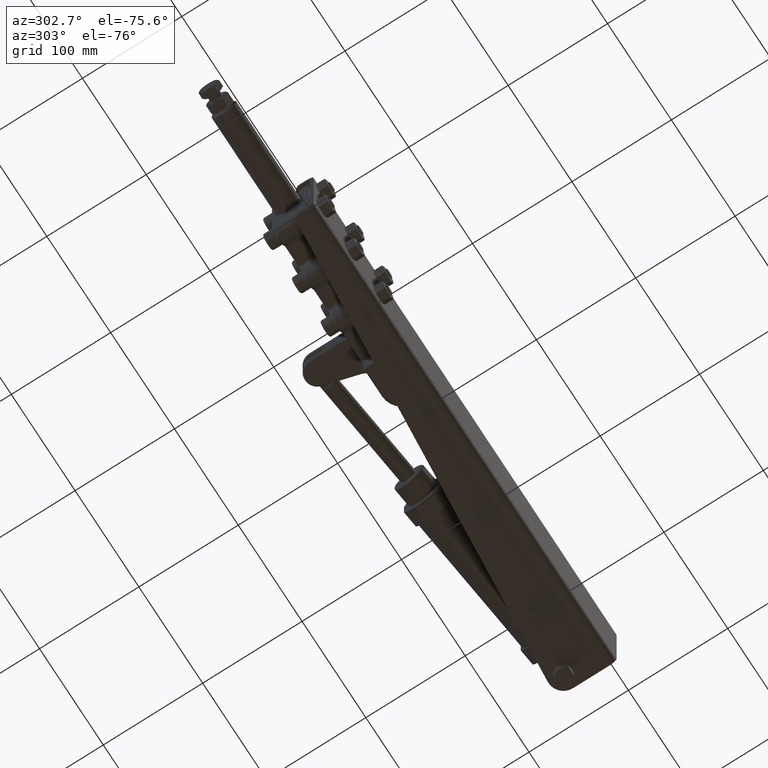
[diagram: clean part render]
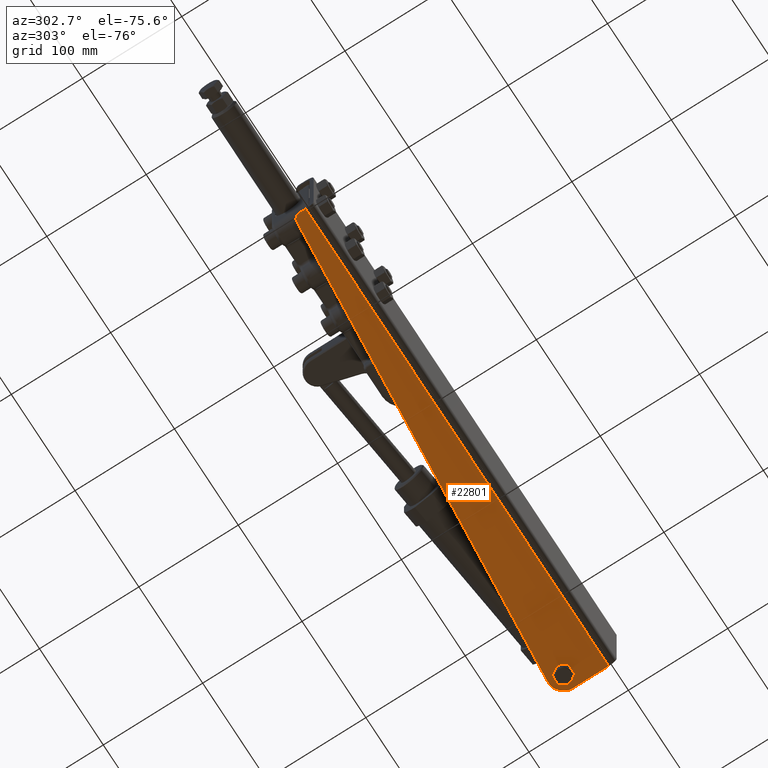
[diagram: same view with one face highlighted and labeled with its STEP entity id]
A machine part, auxiliary view. The second image highlights one B-rep face of the part: STEP entity #22801.
In plain terms, the highlighted planar face has unit normal (0, 0, -1).
Its self-contained STEP definition (entity closure, byte-faithful):
#671 = VERTEX_POINT ( 'NONE', #8386 ) ;
#742 = CARTESIAN_POINT ( 'NONE',  ( 362.0000000000000000, 40.98781437669580200, -48.00000000000002100 ) ) ;
#1484 = CARTESIAN_POINT ( 'NONE',  ( 360.7314651988013500, 55.93407877480366600, -48.00000000000005700 ) ) ;
#1589 = EDGE_CURVE ( 'NONE', #32205, #671, #55196, .T. ) ;
#1704 = CARTESIAN_POINT ( 'NONE',  ( -92.00000000000002800, 11.48781437669576100, -48.00000000000005700 ) ) ;
#2431 = EDGE_LOOP ( 'NONE', ( #51221, #38946, #54567, #26291, #33711, #11154 ) ) ;
#3375 = LINE ( 'NONE', #4876, #50779 ) ;
#3595 = DIRECTION ( 'NONE',  ( 0.0000000000000000000, 5.303951006235222600E-016, -1.000000000000000000 ) ) ;
#4356 = AXIS2_PLACEMENT_3D ( 'NONE', #18412, #50560, #23057 ) ;
#4876 = CARTESIAN_POINT ( 'NONE',  ( 377.0000000000000000, 5.000000000000007100, -48.00000000000004300 ) ) ;
#5384 = DIRECTION ( 'NONE',  ( -6.938893903907228400E-015, -1.000000000000000000, 0.0000000000000000000 ) ) ;
#5724 = EDGE_CURVE ( 'NONE', #28874, #8023, #27057, .T. ) ;
#5908 = CARTESIAN_POINT ( 'NONE',  ( -98.00000000000002800, 11.48781437669576100, -48.00000000000005700 ) ) ;
#6109 = DIRECTION ( 'NONE',  ( -0.9964176265405272300, -0.08456898674657611900, -0.0000000000000000000 ) ) ;
#6172 = CIRCLE ( 'NONE', #4356, 8.000000000000000000 ) ;
#6319 = DIRECTION ( 'NONE',  ( 1.000000000000000000, 0.0000000000000000000, 0.0000000000000000000 ) ) ;
#6907 = EDGE_CURVE ( 'NONE', #39581, #47400, #49805, .T. ) ;
#7086 = CARTESIAN_POINT ( 'NONE',  ( 368.9282032302754700, 44.98781437669581600, -48.00000000000002800 ) ) ;
#7328 = CARTESIAN_POINT ( 'NONE',  ( 362.0000000000000000, 40.98781437669580200, -48.00000000000002100 ) ) ;
#8023 = VERTEX_POINT ( 'NONE', #28674 ) ;
#8386 = CARTESIAN_POINT ( 'NONE',  ( -98.00000000000000000, 5.000000000000007100, -48.00000000000004300 ) ) ;
#9524 = ORIENTED_EDGE ( 'NONE', *, *, #1589, .F. ) ;
#10768 = LINE ( 'NONE', #42854, #45983 ) ;
#11074 = CIRCLE ( 'NONE', #59624, 8.000000000000000000 ) ;
#11137 = VERTEX_POINT ( 'NONE', #40593 ) ;
#11154 = ORIENTED_EDGE ( 'NONE', *, *, #5724, .T. ) ;
#11731 = DIRECTION ( 'NONE',  ( 0.0000000000000000000, 0.0000000000000000000, 1.000000000000000000 ) ) ;
#11895 = DIRECTION ( 'NONE',  ( 1.387778780781445700E-014, -1.000000000000000000, 0.0000000000000000000 ) ) ;
#12543 = CARTESIAN_POINT ( 'NONE',  ( 376.9999999999999400, 40.98781437669580900, -48.00000000000005700 ) ) ;
#13110 = VECTOR ( 'NONE', #26024, 1000.000000000000000 ) ;
#14670 = AXIS2_PLACEMENT_3D ( 'NONE', #20577, #52660, #25156 ) ;
#15758 = EDGE_CURVE ( 'NONE', #39581, #19011, #49585, .T. ) ;
#17080 = FACE_OUTER_BOUND ( 'NONE', #26761, .T. ) ;
#17225 = CARTESIAN_POINT ( 'NONE',  ( -92.50741392047950700, 17.46632013593891800, -48.00000000000005700 ) ) ;
#17447 = ORIENTED_EDGE ( 'NONE', *, *, #45583, .F. ) ;
#17488 = DIRECTION ( 'NONE',  ( 0.0000000000000000000, -1.000000000000000000, -5.303951006235222600E-016 ) ) ;
#17882 = AXIS2_PLACEMENT_3D ( 'NONE', #1704, #33838, #6319 ) ;
#18412 = CARTESIAN_POINT ( 'NONE',  ( 362.0000000000000000, 40.98781437669580200, -48.00000000000002100 ) ) ;
#19011 = VERTEX_POINT ( 'NONE', #1484 ) ;
#19547 = CIRCLE ( 'NONE', #55863, 8.000000000000000000 ) ;
#19870 = DIRECTION ( 'NONE',  ( -5.787961977483159600E-017, -2.988095288013025300E-018, -1.000000000000000000 ) ) ;
#20577 = CARTESIAN_POINT ( 'NONE',  ( 362.0000000000000000, 40.98781437669580200, -48.00000000000002100 ) ) ;
#21425 = CARTESIAN_POINT ( 'NONE',  ( 377.0000000000000000, 57.32999999999999800, -48.00000000000001400 ) ) ;
#21669 = CARTESIAN_POINT ( 'NONE',  ( 362.0000000000000000, 32.98781437669580200, -48.00000000000002800 ) ) ;
#22184 = EDGE_CURVE ( 'NONE', #27038, #28874, #58850, .T. ) ;
#22801 = ADVANCED_FACE ( 'NONE', ( #53735, #17080 ), #31123, .T. ) ;
#22893 = ORIENTED_EDGE ( 'NONE', *, *, #32222, .F. ) ;
#23057 = DIRECTION ( 'NONE',  ( 6.938893903907228400E-015, -1.000000000000000000, 0.0000000000000000000 ) ) ;
#24196 = CARTESIAN_POINT ( 'NONE',  ( 362.0000000000000000, 40.98781437669580200, -48.00000000000002100 ) ) ;
#24480 = AXIS2_PLACEMENT_3D ( 'NONE', #7328, #39453, #11895 ) ;
#25156 = DIRECTION ( 'NONE',  ( -6.938893903907228400E-015, -1.000000000000000000, 0.0000000000000000000 ) ) ;
#25239 = EDGE_CURVE ( 'NONE', #8023, #11137, #26799, .T. ) ;
#26024 = DIRECTION ( 'NONE',  ( 0.0000000000000000000, -1.000000000000000000, -5.303951006235222600E-016 ) ) ;
#26291 = ORIENTED_EDGE ( 'NONE', *, *, #29042, .T. ) ;
#26761 = EDGE_LOOP ( 'NONE', ( #9524, #17447, #22893, #26858, #44481, #40625 ) ) ;
#26799 = CIRCLE ( 'NONE', #24480, 8.000000000000000000 ) ;
#26858 = ORIENTED_EDGE ( 'NONE', *, *, #15758, .F. ) ;
#27038 = VERTEX_POINT ( 'NONE', #7086 ) ;
#27057 = CIRCLE ( 'NONE', #37600, 8.000000000000000000 ) ;
#27635 = CARTESIAN_POINT ( 'NONE',  ( 377.0000000000000000, 5.000000000000007100, -48.00000000000004300 ) ) ;
#28674 = CARTESIAN_POINT ( 'NONE',  ( 355.0717967697245300, 44.98781437669580900, -48.00000000000002800 ) ) ;
#28811 = DIRECTION ( 'NONE',  ( 0.0000000000000000000, -1.000000000000000000, 0.0000000000000000000 ) ) ;
#28874 = VERTEX_POINT ( 'NONE', #39343 ) ;
#29042 = EDGE_CURVE ( 'NONE', #59120, #27038, #6172, .T. ) ;
#30158 = VERTEX_POINT ( 'NONE', #21669 ) ;
#31123 = PLANE ( 'NONE',  #32825 ) ;
#32205 = VERTEX_POINT ( 'NONE', #5908 ) ;
#32222 = EDGE_CURVE ( 'NONE', #19011, #58266, #10768, .T. ) ;
#32391 = DIRECTION ( 'NONE',  ( -1.000000000000000000, 0.0000000000000000000, 0.0000000000000000000 ) ) ;
#32825 = AXIS2_PLACEMENT_3D ( 'NONE', #58606, #3595, #35706 ) ;
#32893 = DIRECTION ( 'NONE',  ( 5.787961977483159600E-017, 2.988095288013025300E-018, 1.000000000000000000 ) ) ;
#33169 = EDGE_CURVE ( 'NONE', #30158, #59120, #11074, .T. ) ;
#33711 = ORIENTED_EDGE ( 'NONE', *, *, #22184, .T. ) ;
#33838 = DIRECTION ( 'NONE',  ( 0.0000000000000000000, 0.0000000000000000000, 1.000000000000000000 ) ) ;
#34233 = EDGE_CURVE ( 'NONE', #30158, #11137, #19547, .T. ) ;
#34539 = CIRCLE ( 'NONE', #17882, 5.999999999999991100 ) ;
#35706 = DIRECTION ( 'NONE',  ( 0.0000000000000000000, 1.000000000000000000, 5.303951006235222600E-016 ) ) ;
#37600 = AXIS2_PLACEMENT_3D ( 'NONE', #742, #32893, #5384 ) ;
#38946 = ORIENTED_EDGE ( 'NONE', *, *, #34233, .F. ) ;
#39292 = CARTESIAN_POINT ( 'NONE',  ( 362.0000000000000000, 40.98781437669580900, -48.00000000000005700 ) ) ;
#39343 = CARTESIAN_POINT ( 'NONE',  ( 362.0000000000000000, 48.98781437669580200, -48.00000000000002100 ) ) ;
#39453 = DIRECTION ( 'NONE',  ( 5.787961977483159600E-017, 2.988095288013025300E-018, 1.000000000000000000 ) ) ;
#39581 = VERTEX_POINT ( 'NONE', #12543 ) ;
#40593 = CARTESIAN_POINT ( 'NONE',  ( 355.0717967697245300, 36.98781437669580200, -48.00000000000002800 ) ) ;
#40625 = ORIENTED_EDGE ( 'NONE', *, *, #54553, .T. ) ;
#42854 = CARTESIAN_POINT ( 'NONE',  ( -92.50741392047950700, 17.46632013593890400, -48.00000000000005700 ) ) ;
#42990 = VECTOR ( 'NONE', #17488, 1000.000000000000000 ) ;
#43901 = DIRECTION ( 'NONE',  ( 1.000000000000000000, 0.0000000000000000000, 0.0000000000000000000 ) ) ;
#44481 = ORIENTED_EDGE ( 'NONE', *, *, #6907, .T. ) ;
#45025 = CARTESIAN_POINT ( 'NONE',  ( -98.00000000000000000, 57.32999999999999800, -48.00000000000001400 ) ) ;
#45583 = EDGE_CURVE ( 'NONE', #58266, #32205, #34539, .T. ) ;
#45983 = VECTOR ( 'NONE', #6109, 1000.000000000000100 ) ;
#47347 = CARTESIAN_POINT ( 'NONE',  ( 362.0000000000000000, 40.98781437669580200, -48.00000000000002800 ) ) ;
#47400 = VERTEX_POINT ( 'NONE', #27635 ) ;
#49585 = CIRCLE ( 'NONE', #58901, 14.99999999999995700 ) ;
#49805 = LINE ( 'NONE', #21425, #13110 ) ;
#50560 = DIRECTION ( 'NONE',  ( 5.787961977483159600E-017, 2.988095288013025300E-018, 1.000000000000000000 ) ) ;
#50779 = VECTOR ( 'NONE', #32391, 1000.000000000000000 ) ;
#51078 = CARTESIAN_POINT ( 'NONE',  ( 368.9282032302754700, 36.98781437669580200, -48.00000000000002100 ) ) ;
#51221 = ORIENTED_EDGE ( 'NONE', *, *, #25239, .T. ) ;
#51973 = DIRECTION ( 'NONE',  ( 0.0000000000000000000, -1.000000000000000000, 0.0000000000000000000 ) ) ;
#52660 = DIRECTION ( 'NONE',  ( 5.787961977483159600E-017, 2.988095288013025300E-018, 1.000000000000000000 ) ) ;
#53735 = FACE_BOUND ( 'NONE', #2431, .T. ) ;
#54553 = EDGE_CURVE ( 'NONE', #47400, #671, #3375, .T. ) ;
#54567 = ORIENTED_EDGE ( 'NONE', *, *, #33169, .T. ) ;
#55196 = LINE ( 'NONE', #45025, #42990 ) ;
#55863 = AXIS2_PLACEMENT_3D ( 'NONE', #47347, #19870, #51973 ) ;
#56344 = DIRECTION ( 'NONE',  ( 5.787961977483159600E-017, 2.988095288013025300E-018, 1.000000000000000000 ) ) ;
#58266 = VERTEX_POINT ( 'NONE', #17225 ) ;
#58606 = CARTESIAN_POINT ( 'NONE',  ( 377.0000000000000000, 57.32999999999999800, -48.00000000000001400 ) ) ;
#58850 = CIRCLE ( 'NONE', #14670, 8.000000000000000000 ) ;
#58901 = AXIS2_PLACEMENT_3D ( 'NONE', #39292, #11731, #43901 ) ;
#59120 = VERTEX_POINT ( 'NONE', #51078 ) ;
#59624 = AXIS2_PLACEMENT_3D ( 'NONE', #24196, #56344, #28811 ) ;